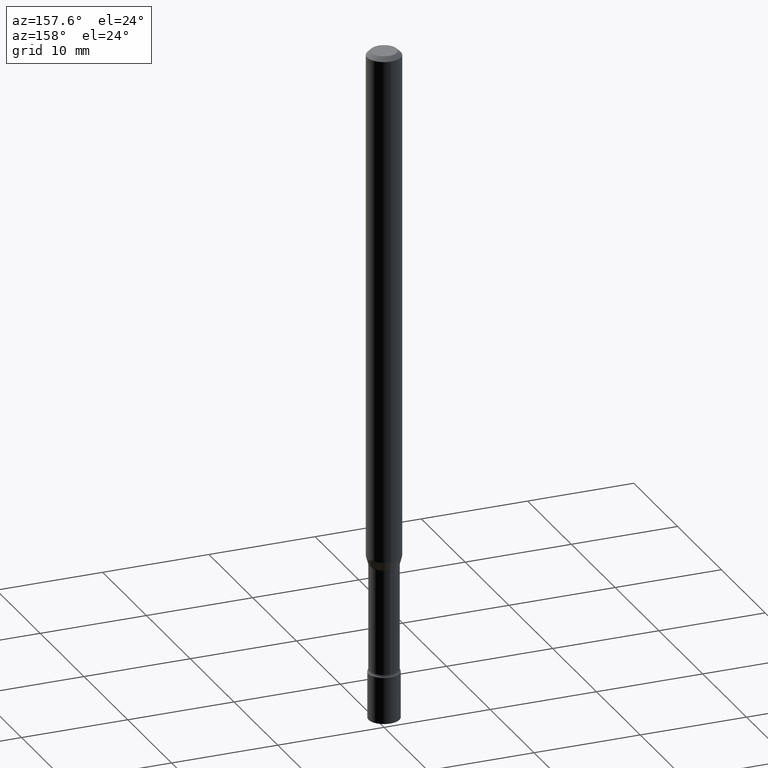
[diagram: clean part render]
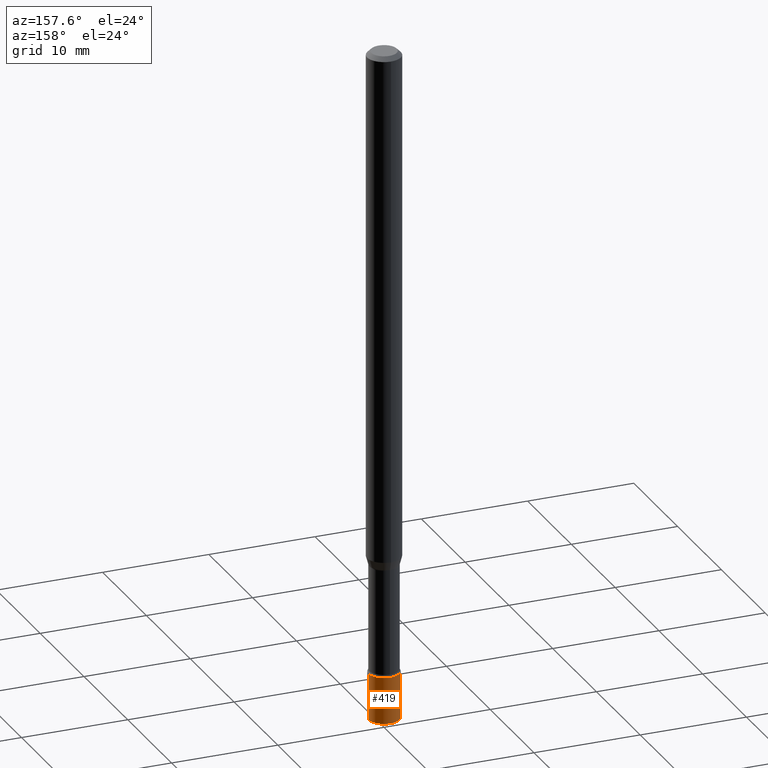
[diagram: same view with one face highlighted and labeled with its STEP entity id]
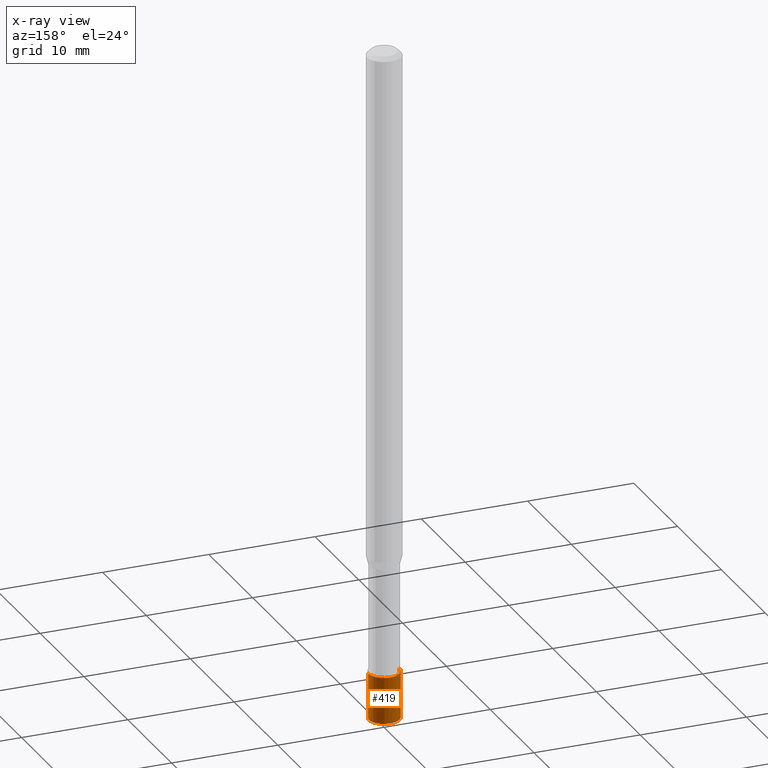
[diagram: x-ray of the same camera — body ghosted, the highlighted face saturated]
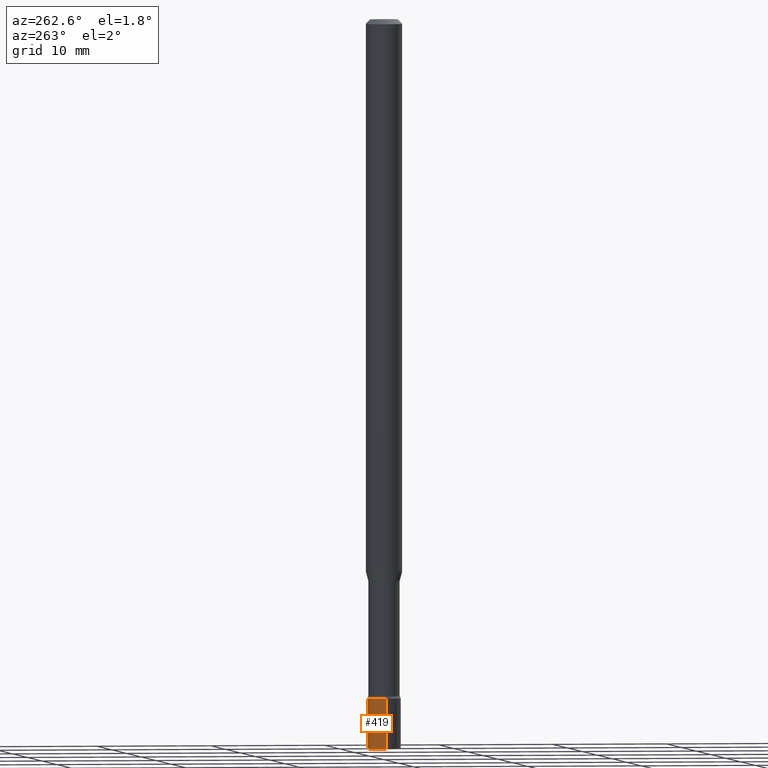
[diagram: same view with one face highlighted and labeled with its STEP entity id]
A machine part, auxiliary view. The second image highlights one B-rep face of the part: STEP entity #419.
The next image is the same camera in x-ray: the body ghosted, the highlighted face saturated — about 0% of this face is hidden behind the body in this view.
A second angle (auxiliary view) of the same face is appended — the face is thin or edge-on in the first view.
In plain terms, the highlighted cylindrical surface (edge-blend (fillet) strip) has radius 1.4605 mm, axis along (-0, 0, 1).
Its self-contained STEP definition (entity closure, byte-faithful):
#10 = CARTESIAN_POINT ( 'NONE',  ( 0.05750000000000000250, -4.015203539669603161E-16, 2.803801646082662941E-30 ) ) ;
#27 = ORIENTED_EDGE ( 'NONE', *, *, #47, .F. ) ;
#30 = EDGE_CURVE ( 'NONE', #435, #94, #331, .T. ) ;
#47 = EDGE_CURVE ( 'NONE', #240, #435, #99, .T. ) ;
#55 = AXIS2_PLACEMENT_3D ( 'NONE', #298, #56, #259 ) ;
#56 = DIRECTION ( 'NONE',  ( -2.445468806185136597E-29, 3.491481338843145583E-15, 1.000000000000000000 ) ) ;
#94 = VERTEX_POINT ( 'NONE', #214 ) ;
#99 = LINE ( 'NONE', #10, #170 ) ;
#103 = AXIS2_PLACEMENT_3D ( 'NONE', #412, #250, #368 ) ;
#104 = VECTOR ( 'NONE', #432, 39.37007874015748143 ) ;
#112 = ORIENTED_EDGE ( 'NONE', *, *, #30, .F. ) ;
#114 = CIRCLE ( 'NONE', #55, 0.05750000000000000250 ) ;
#115 = CARTESIAN_POINT ( 'NONE',  ( -0.05750000000000000250, 4.085620730620576246E-16, -2.828387676896570712E-30 ) ) ;
#126 = CARTESIAN_POINT ( 'NONE',  ( 0.05750000000000000250, -8.526197429454961062E-15, -2.326999999999999957 ) ) ;
#133 = CARTESIAN_POINT ( 'NONE',  ( 0.000000000000000000, 0.000000000000000000, 0.000000000000000000 ) ) ;
#170 = VECTOR ( 'NONE', #256, 39.37007874015748143 ) ;
#193 = CARTESIAN_POINT ( 'NONE',  ( 0.05750000000000000250, -9.130223701074824963E-15, -2.500000000000000000 ) ) ;
#214 = CARTESIAN_POINT ( 'NONE',  ( -0.05750000000000000250, -8.018128138235874628E-15, -2.326999999999999957 ) ) ;
#240 = VERTEX_POINT ( 'NONE', #193 ) ;
#250 = DIRECTION ( 'NONE',  ( -2.445468806185136597E-29, 3.491481338843145583E-15, 1.000000000000000000 ) ) ;
#254 = FACE_OUTER_BOUND ( 'NONE', #321, .T. ) ;
#256 = DIRECTION ( 'NONE',  ( -2.445468806185136877E-29, 3.491481338843145188E-15, 1.000000000000000000 ) ) ;
#259 = DIRECTION ( 'NONE',  ( 1.000000000000000000, -6.982962677686256455E-15, 0.000000000000000000 ) ) ;
#291 = CYLINDRICAL_SURFACE ( 'NONE', #316, 0.05750000000000000250 ) ;
#298 = CARTESIAN_POINT ( 'NONE',  ( 6.113672015462842613E-29, -8.728703347107864943E-15, -2.500000000000000000 ) ) ;
#316 = AXIS2_PLACEMENT_3D ( 'NONE', #133, #492, #445 ) ;
#321 = EDGE_LOOP ( 'NONE', ( #362, #486, #112, #27 ) ) ;
#331 = CIRCLE ( 'NONE', #103, 0.05750000000000000250 ) ;
#357 = EDGE_CURVE ( 'NONE', #476, #94, #471, .T. ) ;
#362 = ORIENTED_EDGE ( 'NONE', *, *, #472, .T. ) ;
#368 = DIRECTION ( 'NONE',  ( 1.000000000000000000, -6.982962677686273810E-15, 0.000000000000000000 ) ) ;
#376 = CARTESIAN_POINT ( 'NONE',  ( -0.05750000000000000250, -8.018128138235874628E-15, -2.500000000000000000 ) ) ;
#412 = CARTESIAN_POINT ( 'NONE',  ( 5.690605911992812897E-29, -8.124677075487999464E-15, -2.326999999999999957 ) ) ;
#419 = ADVANCED_FACE ( 'NONE', ( #254 ), #291, .T. ) ;
#432 = DIRECTION ( 'NONE',  ( -2.445468806185136877E-29, 3.491481338843145188E-15, 1.000000000000000000 ) ) ;
#435 = VERTEX_POINT ( 'NONE', #126 ) ;
#445 = DIRECTION ( 'NONE',  ( 1.000000000000000000, -6.982962677686265922E-15, 4.876176775795935232E-29 ) ) ;
#471 = LINE ( 'NONE', #115, #104 ) ;
#472 = EDGE_CURVE ( 'NONE', #240, #476, #114, .T. ) ;
#476 = VERTEX_POINT ( 'NONE', #376 ) ;
#486 = ORIENTED_EDGE ( 'NONE', *, *, #357, .T. ) ;
#492 = DIRECTION ( 'NONE',  ( -2.445468806185136597E-29, 3.491481338843145583E-15, 1.000000000000000000 ) ) ;